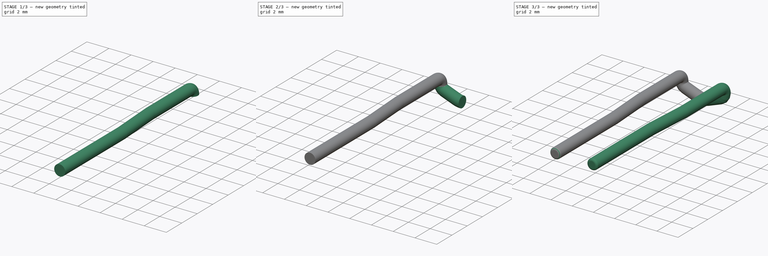
[diagram: build sequence overview — one tinted view per stage of 3, left to right]
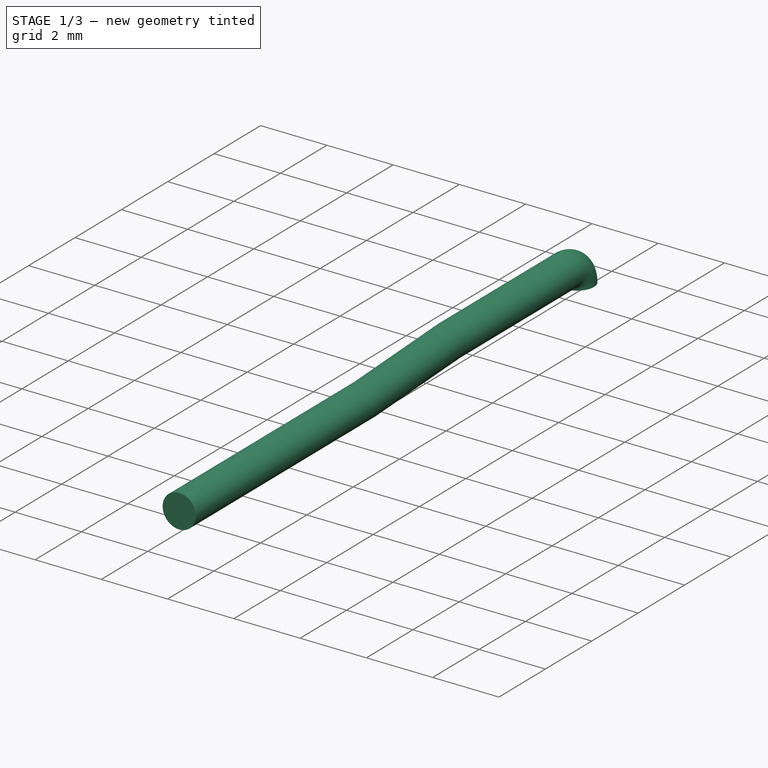
[diagram: stage 1 of 3 — iso view after this stage's code; geometry added in this stage tinted green]
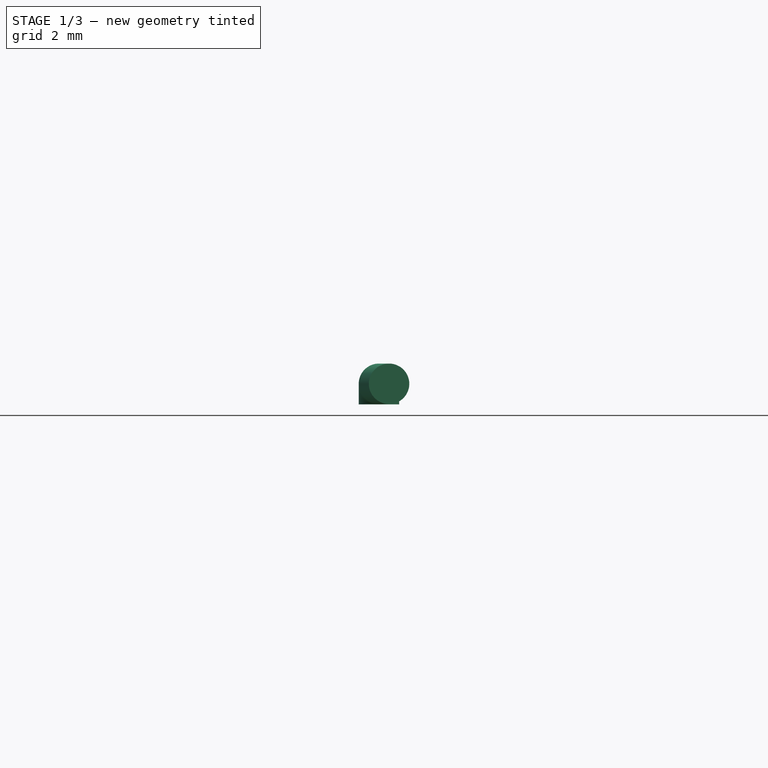
[diagram: stage 1 of 3 — front view after this stage's code; geometry added in this stage tinted green]
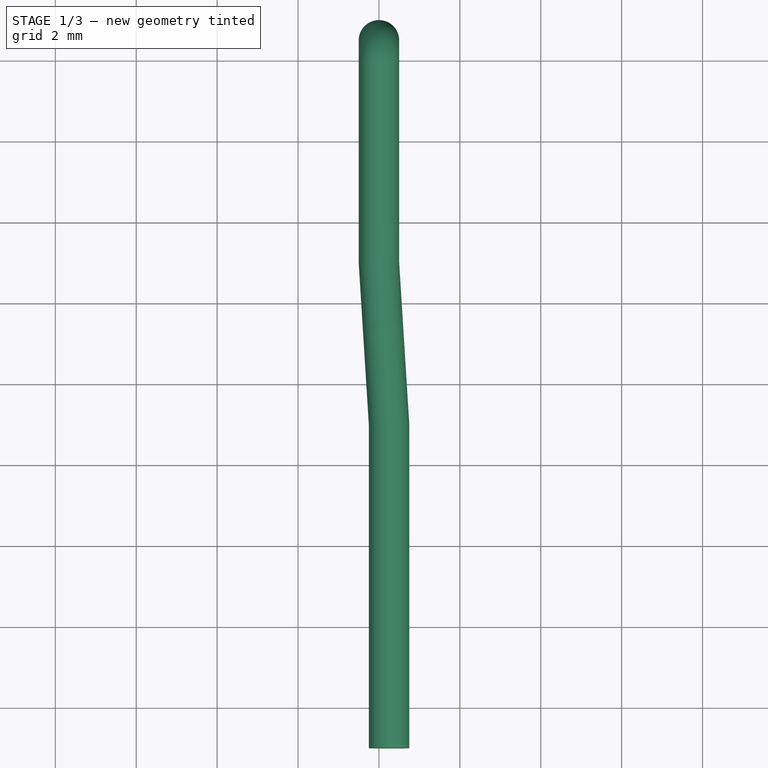
[diagram: stage 1 of 3 — top view after this stage's code; geometry added in this stage tinted green]
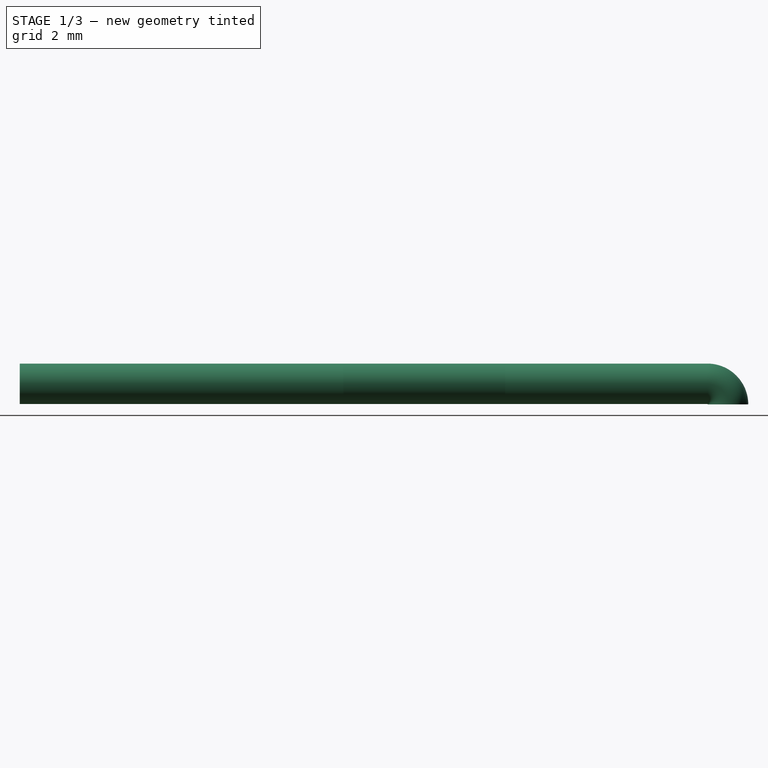
[diagram: stage 1 of 3 — right view after this stage's code; geometry added in this stage tinted green]
FCSTD DOCUMENT  (FreeCAD 1.2R45225 (Git))
Label: RubberBand
License: All rights reserved
objects: Sketcher::SketchObject×4, PartDesign::AdditivePipe×2, App::Point×1, Part::DatumLine×1, PartDesign::Revolution×1, Part::DatumPlane×1, PartDesign::Mirrored×1, PartDesign::Fillet×1, PartDesign::Body×1
note: 23 computed .brp shape members not serialized (recipe doc carries the construction recipe); baked Part::Feature solids carry a one-line shape summary decoded from their .brp

FEATURE [App::Point] Origin001
  Role = Origin
FEATURE [Sketcher::SketchObject] Sketch
  ArcFitTolerance = 1e-06
  AttachmentSupport = -> [Origin]
  ExternalTypes = [0]
  FullyConstrained = true
  MakeInternals = false
  MapMode = 5
  Placement = pos=(0,0,0) rot=(1,0,0;1.5708rad)
  sketch-geometry (1):
    g0: Circle CenterX=-2 CenterY=0 CenterZ=0 NormalX=0 NormalY=0 NormalZ=1 AngleXU=0 Radius=0.5
  constraints (3):
    c: PointOnObject(g0,g-1)
    c: Diameter(g0) = 1
    c: DistanceX(g0,g-1) = 2
FEATURE [Sketcher::SketchObject] Sketch001
  ArcFitTolerance = 1e-06
  AttachmentSupport = -> [Origin]
  ExternalTypes = [0]
  FullyConstrained = true
  MakeInternals = false
  MapMode = 5
  sketch-geometry (3):
    g0: LineSegment StartX=-1.75 StartY=-17 StartZ=0 EndX=-1.75 EndY=-9 EndZ=0
    g1: LineSegment StartX=-1.75 StartY=-9 StartZ=0 EndX=-2 EndY=-5 EndZ=0
    g2: LineSegment StartX=-2 StartY=-5 StartZ=0 EndX=-2 EndY=0 EndZ=0
  constraints (10):
    c: Vertical(g0)
    c: Distance(g-2,g0) = 1.75
    c: Coincident(g1,g0)
    c: Coincident(g2,g1)
    c: Vertical(g2)
    c: Distance(g-2,g2) = 2
    c: DistanceY(g0,g1) = 4
    c: DistanceY(g2,g2) = 5
    c: PointOnObject(g2,g-1)
    c: DistanceY(g0,g-1) = 17
FEATURE [PartDesign::AdditivePipe] AdditivePipe
  AuxiliaryCurvilinear = true
  AuxiliarySpineTangent = false
  Binormal = (0,0,0)
  Mode = 0
  Profile = -> Sketch
  Refine = true
  Spine = -> Sketch001
  SpineTangent = false
  Suppressed = false
  Transformation = 0
  Transition = 0
FEATURE [Part::DatumLine] DatumLine
  AttacherType = Attacher::AttachEngineLine
  AttachmentOffset = pos=(0,-0.51,0) rot=(0,0,1;0rad)
  AttachmentSupport = -> [Origin]
  MapMode = 29
  Placement = pos=(0,0,-0.51) rot=(0.57735,0.57735,0.57735;2.0944rad)
FEATURE [PartDesign::Revolution] Revolution
  Angle = 90
  Angle2 = 0
  Axis = (1,0,0)
  Base = (0,0,-0.51)
  BaseFeature = -> AdditivePipe
  FuseOrder = 0
  Profile = -> AdditivePipe [Edge7]
  ReferenceAxis = -> DatumLine
  Refine = true
  Reversed = true
  Suppressed = false
  Type = 0
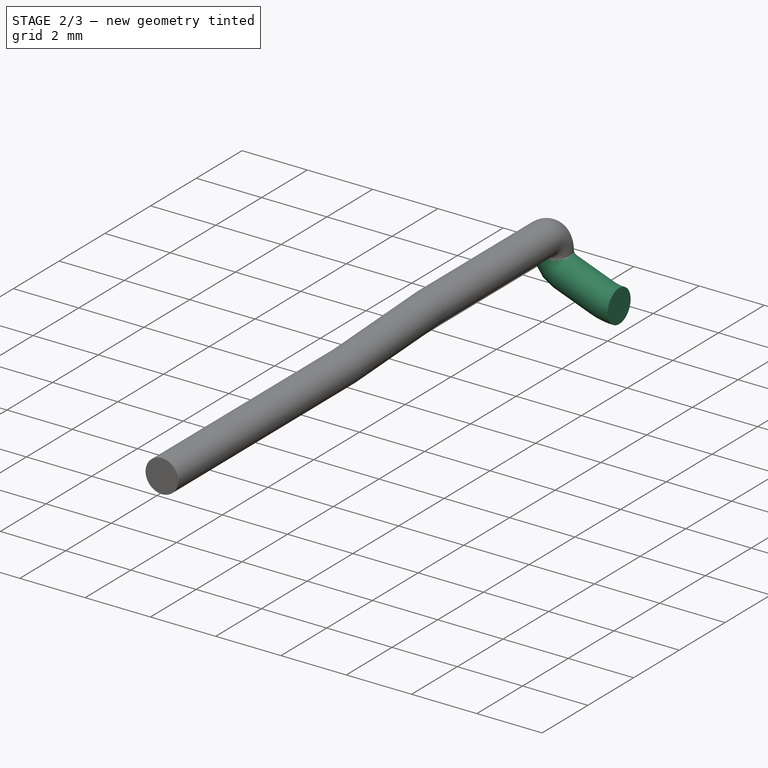
[diagram: stage 2 of 3 — iso view after this stage's code; geometry added in this stage tinted green]
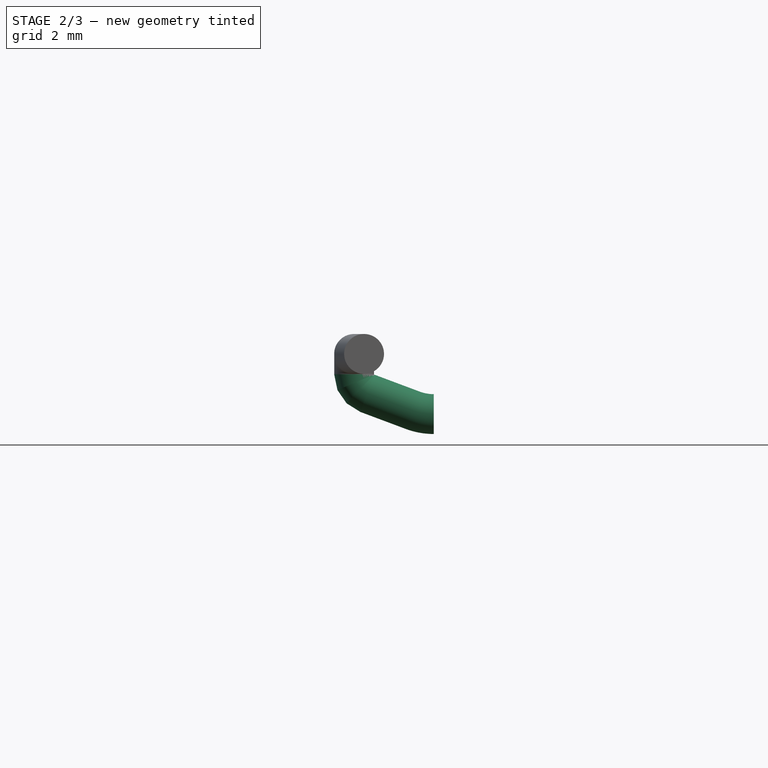
[diagram: stage 2 of 3 — front view after this stage's code; geometry added in this stage tinted green]
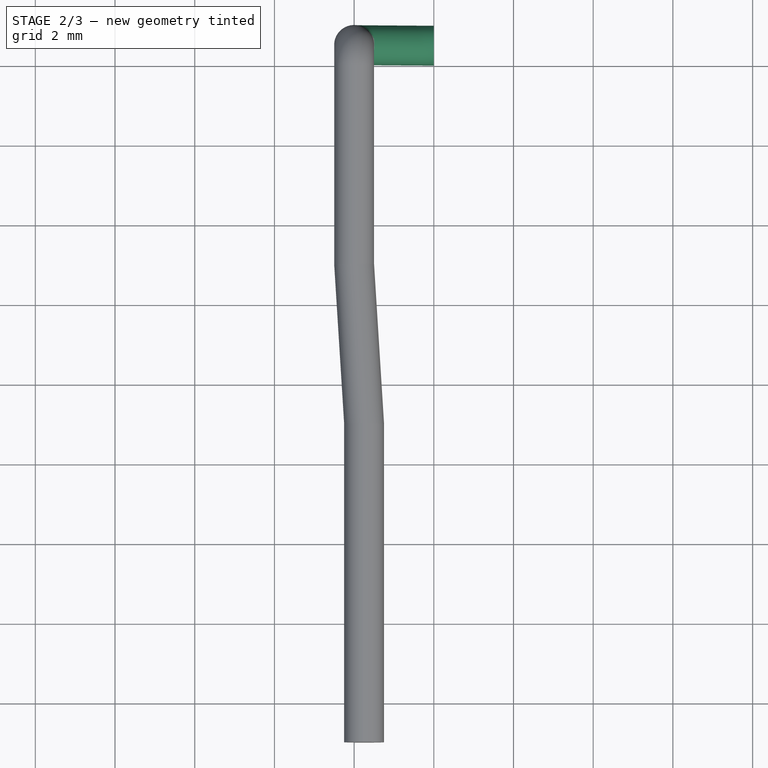
[diagram: stage 2 of 3 — top view after this stage's code; geometry added in this stage tinted green]
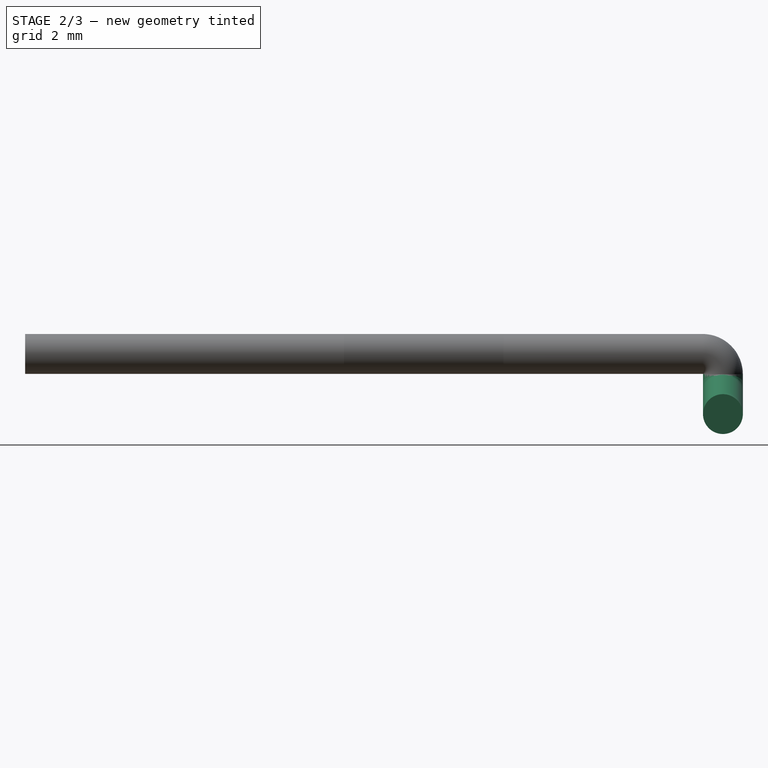
[diagram: stage 2 of 3 — right view after this stage's code; geometry added in this stage tinted green]
FEATURE [Part::DatumPlane] DatumPlane
  AttachmentOffset = pos=(0,0,-0.51) rot=(0,0,1;0rad)
  AttachmentSupport = -> [Origin]
  MapMode = 5
  Placement = pos=(0,0.51,-1e-16) rot=(1,0,0;1.5708rad)
FEATURE [Sketcher::SketchObject] Sketch002
  ArcFitTolerance = 1e-06
  AttachmentSupport = -> [DatumPlane]
  ExternalGeometry = -> [Revolution]
  ExternalTypes = [0]
  FullyConstrained = true
  MakeInternals = false
  MapMode = 5
  Placement = pos=(0,0.51,-1e-16) rot=(1,0,0;1.5708rad)
  sketch-geometry (4):
    g0: Circle [constr] CenterX=0 CenterY=0 CenterZ=0 NormalX=0 NormalY=0 NormalZ=1 AngleXU=0 Radius=1
    g1: ArcOfCircle CenterX=-1.49 CenterY=-0.51 CenterZ=0 NormalX=0 NormalY=0 NormalZ=1 AngleXU=0 Radius=0.51 StartAngle=3.14159 EndAngle=4.3542
    g2: LineSegment StartX=-1.6688 StartY=-0.987631 StartZ=0 EndX=-0.529381 EndY=-1.41416 EndZ=0
    g3: ArcOfCircle CenterX=0 CenterY=0 CenterZ=0 NormalX=0 NormalY=0 NormalZ=1 AngleXU=0 Radius=1.51 StartAngle=4.3542 EndAngle=4.71239
  constraints (10):
    c: Coincident(g0,g-1)
    c: Diameter(g0) = 2
    c: Tangent(g2,g1) = -1.5708
    c: PointOnObject(g3,g-2)
    c: Tangent(g3,g2) = -1.5708
    c: Radius(g1) = 0.51
    c: Symmetric(g-3,g-3,g1)
    c: Perpendicular(g1,g-3)
    c: Coincident(g3,g0)
    c: DistanceY(g3,g-1) = 1.51
FEATURE [Sketcher::SketchObject] Sketch003
  ArcFitTolerance = 1e-06
  AttachmentSupport = -> [Revolution]
  ExternalGeometry = -> [Revolution]
  ExternalTypes = [0]
  FullyConstrained = true
  MakeInternals = false
  MapMode = 5
  Placement = pos=(0,1e-16,-0.51) rot=(1,0,0;3.14159rad)
FEATURE [PartDesign::AdditivePipe] AdditivePipe001
  AuxiliaryCurvilinear = true
  AuxiliarySpineTangent = false
  BaseFeature = -> Revolution
  Binormal = (0,0,0)
  Mode = 0
  Profile = -> Sketch003
  Refine = true
  Spine = -> Sketch002
  SpineTangent = false
  Suppressed = false
  Transformation = 0
  Transition = 0
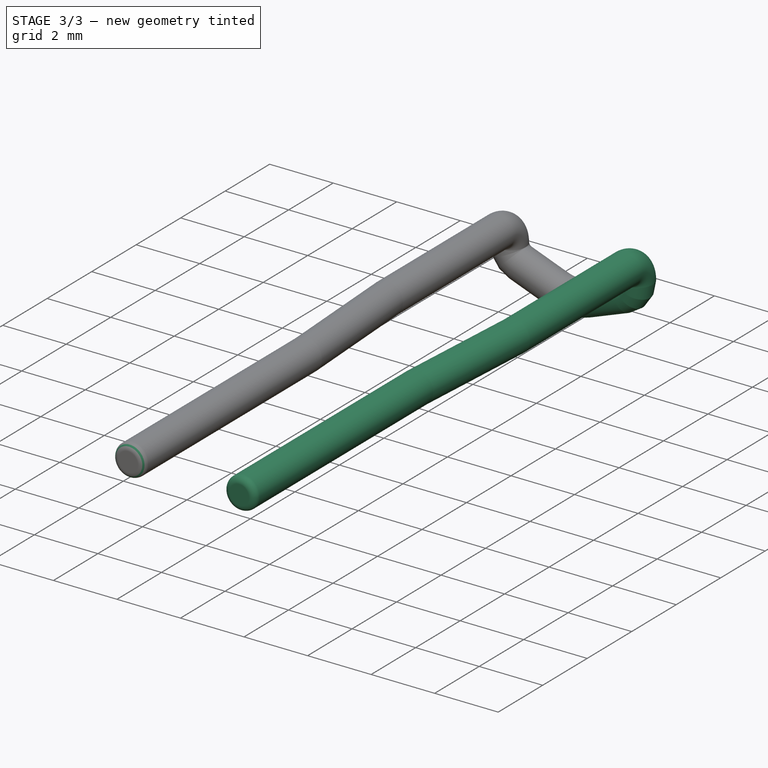
[diagram: stage 3 of 3 — iso view after this stage's code; geometry added in this stage tinted green]
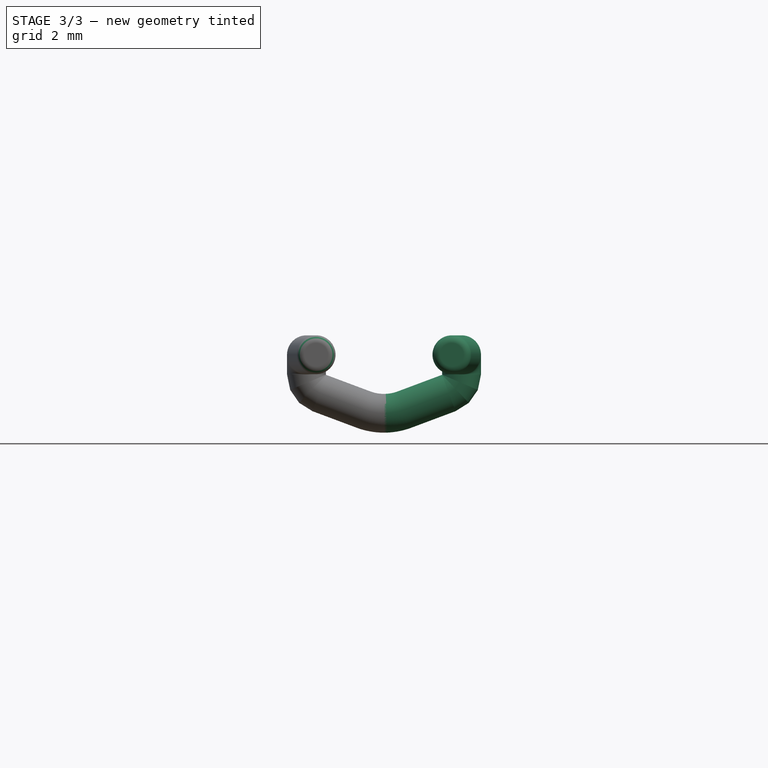
[diagram: stage 3 of 3 — front view after this stage's code; geometry added in this stage tinted green]
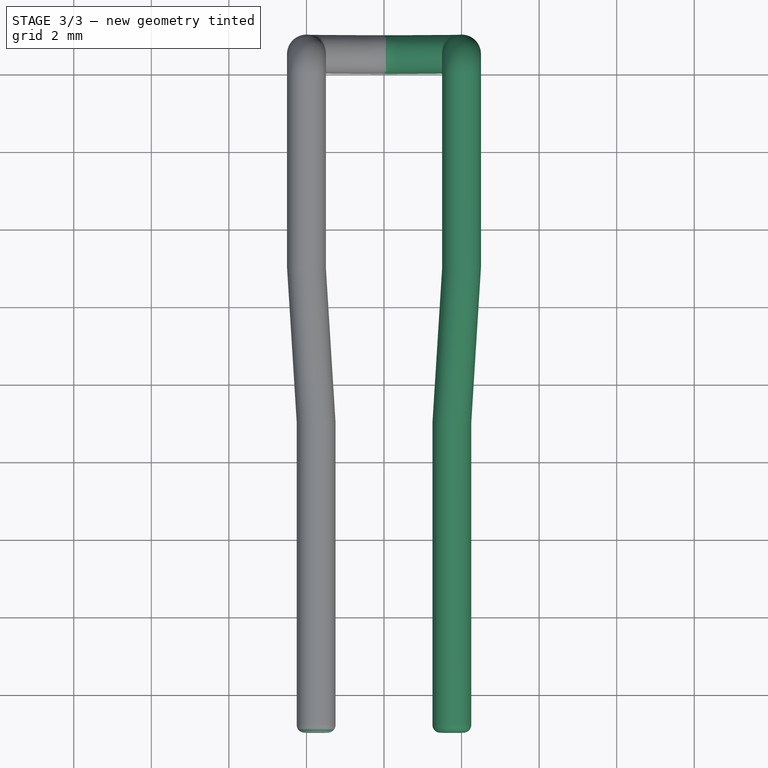
[diagram: stage 3 of 3 — top view after this stage's code; geometry added in this stage tinted green]
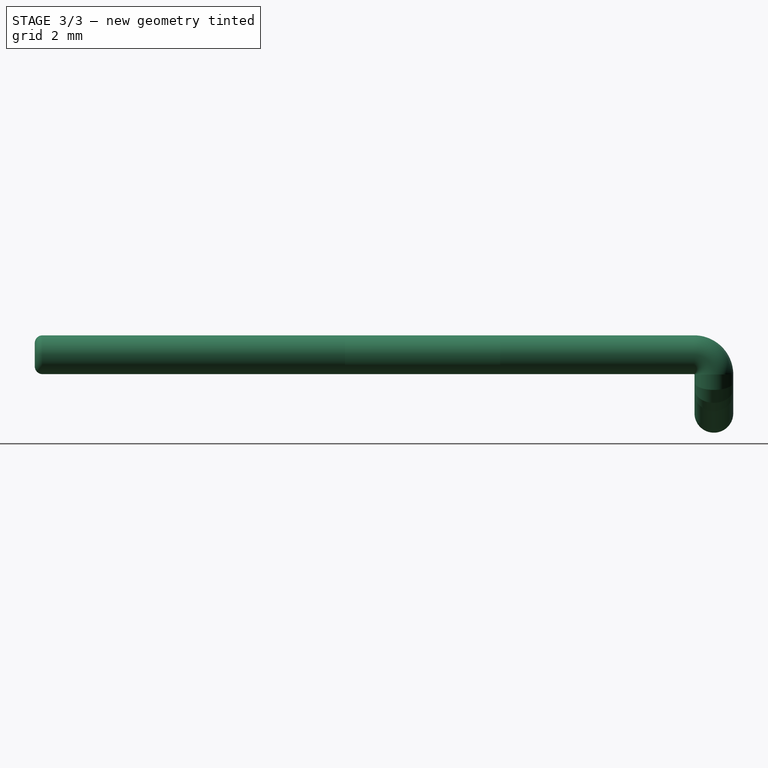
[diagram: stage 3 of 3 — right view after this stage's code; geometry added in this stage tinted green]
FEATURE [PartDesign::Mirrored] Mirrored
  BaseFeature = -> AdditivePipe001
  MirrorPlane = -> YZ_Plane
  Refine = true
  Suppressed = false
  TransformMode = 1
FEATURE [PartDesign::Fillet] Fillet
  Base = -> Mirrored [Edge29,Edge1]
  BaseFeature = -> Mirrored
  Radius = 0.2
  Refine = true
  SupportTransform = false
  Suppressed = false
  UseAllEdges = false
FEATURE [PartDesign::Body] Body  label="RubberBand"
  AllowCompound = false
  Group = -> [Sketch,Sketch001,AdditivePipe,DatumLine,Revolution,DatumPlane,Sketch002,Sketch003,AdditivePipe001,Mirrored,Fillet]
  Origin = -> Origin
  Tip = -> Fillet
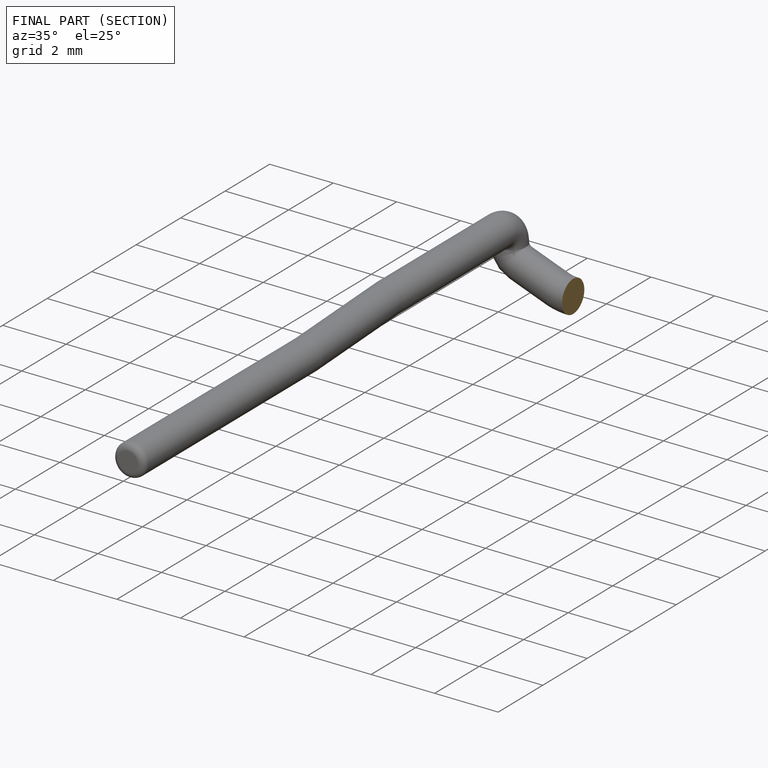
[diagram: finished part — half-section view (interior)]
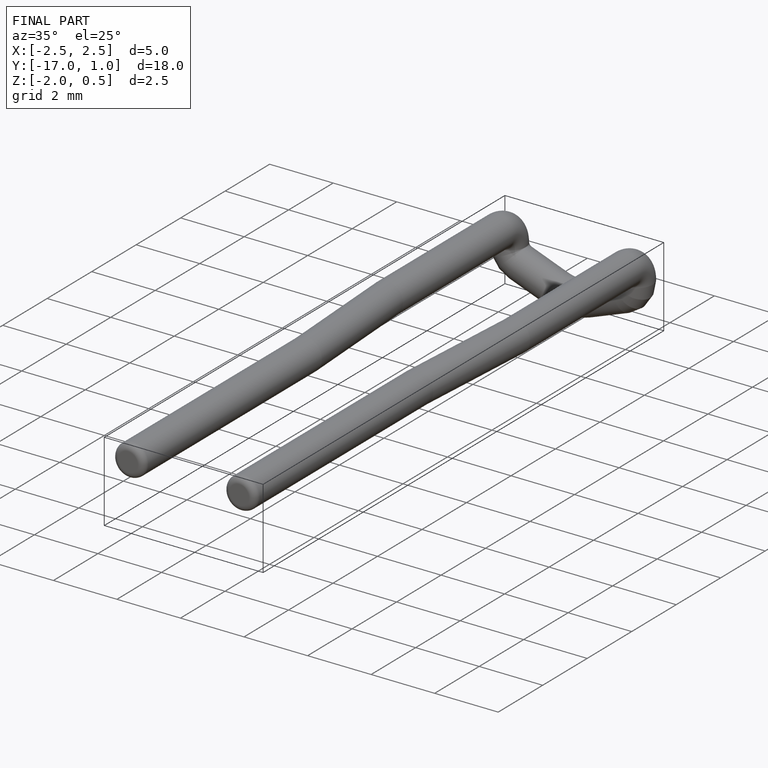
[diagram: finished part — iso view with bounding-box wireframe]
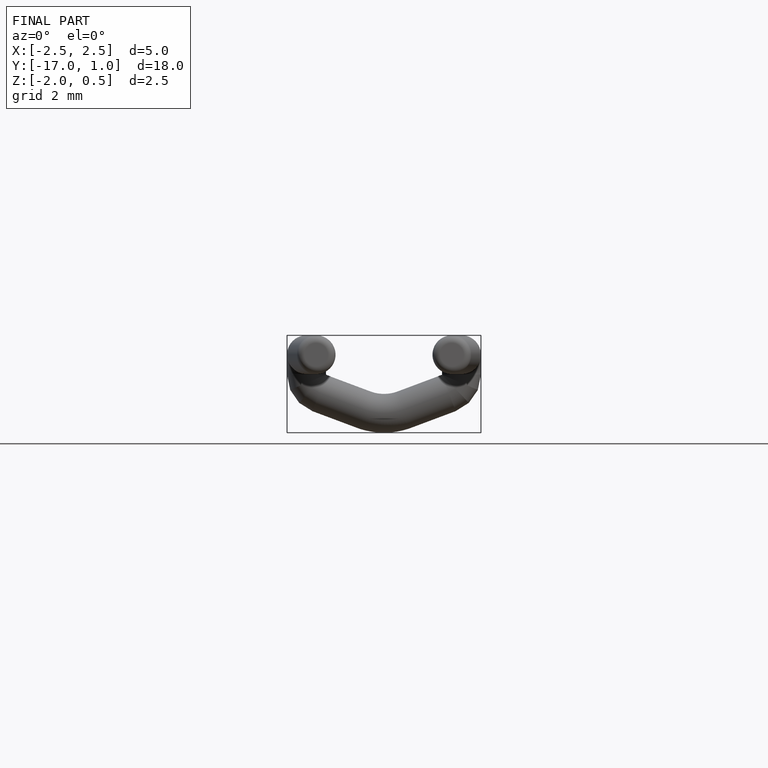
[diagram: finished part — front view with bounding-box wireframe]
